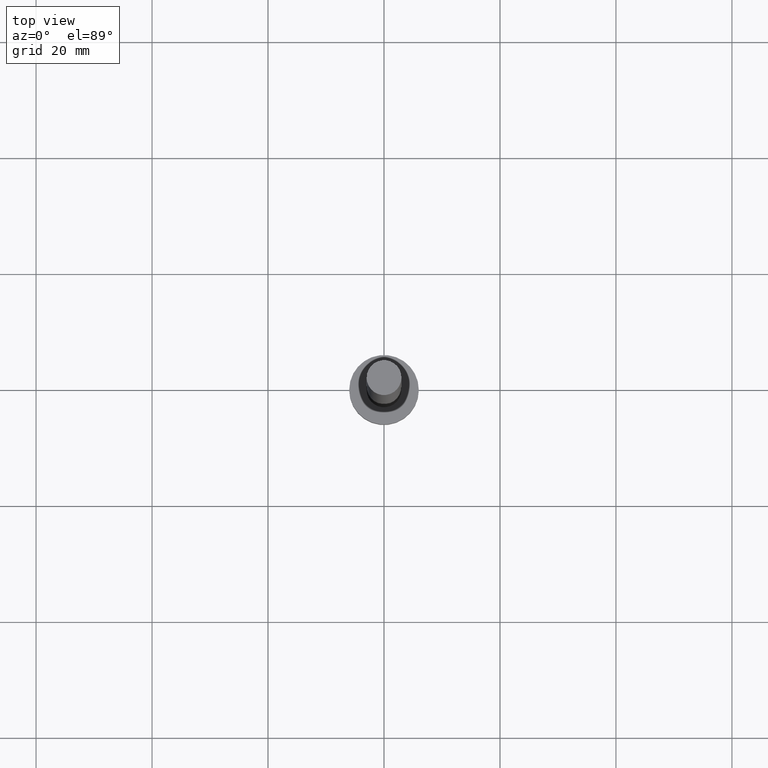
[diagram: clean part render]
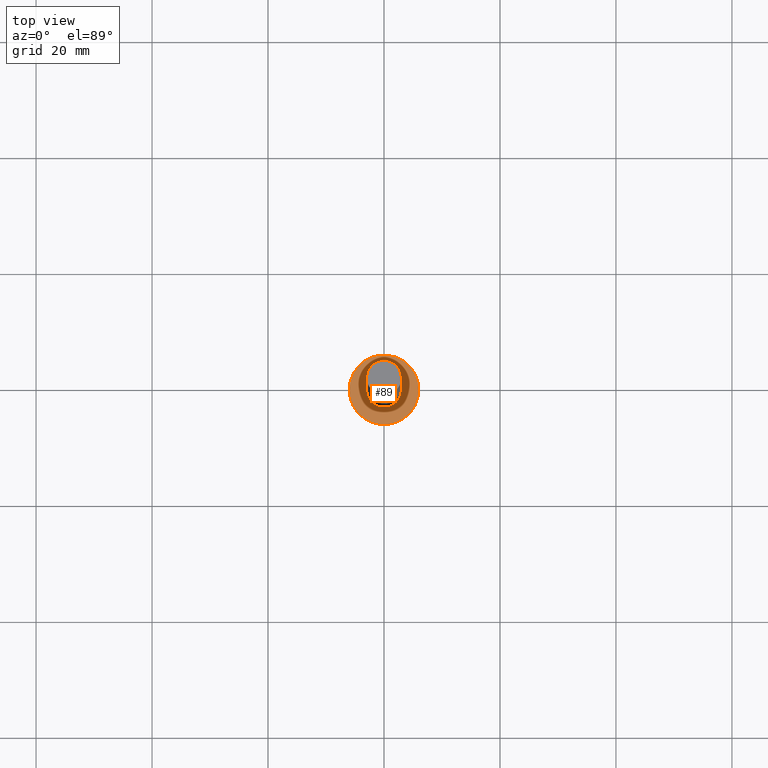
[diagram: same view with one face highlighted and labeled with its STEP entity id]
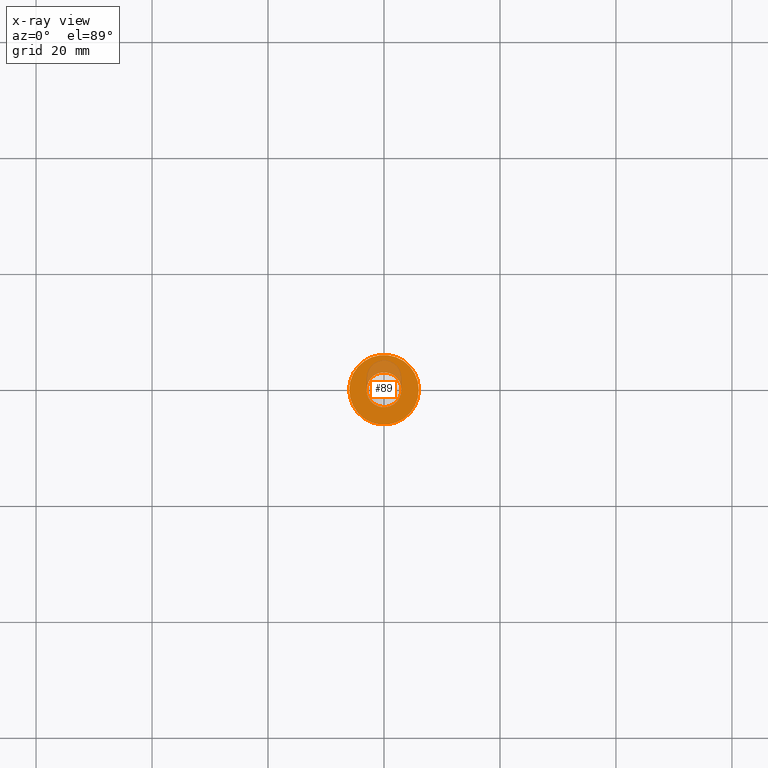
[diagram: x-ray of the same camera — body ghosted, the highlighted face saturated]
A machine part, top view. The second image highlights one B-rep face of the part: STEP entity #89.
The next image is the same camera in x-ray: the body ghosted, the highlighted face saturated — about 15% of this face is hidden behind the body in this view.
In plain terms, the highlighted planar face has unit normal (0, 0, 1).
Its self-contained STEP definition (entity closure, byte-faithful):
#2 = AXIS2_PLACEMENT_3D ( 'NONE', #90, #40, #206 ) ;
#6 = CARTESIAN_POINT ( 'NONE',  ( 0.000000000000000000, 0.000000000000000000, 5.000000000000000000 ) ) ;
#11 = CARTESIAN_POINT ( 'NONE',  ( 3.000000000000000444, 3.673940397442060361E-16, 5.000000000000000000 ) ) ;
#40 = DIRECTION ( 'NONE',  ( 0.000000000000000000, 0.000000000000000000, 1.000000000000000000 ) ) ;
#48 = CIRCLE ( 'NONE', #201, 3.000000000000000444 ) ;
#49 = VERTEX_POINT ( 'NONE', #106 ) ;
#52 = VERTEX_POINT ( 'NONE', #11 ) ;
#55 = ORIENTED_EDGE ( 'NONE', *, *, #128, .F. ) ;
#57 = AXIS2_PLACEMENT_3D ( 'NONE', #60, #205, #124 ) ;
#60 = CARTESIAN_POINT ( 'NONE',  ( 0.000000000000000000, 0.000000000000000000, 5.000000000000000000 ) ) ;
#63 = DIRECTION ( 'NONE',  ( 1.000000000000000000, 0.000000000000000000, 0.000000000000000000 ) ) ;
#89 = ADVANCED_FACE ( 'NONE', ( #203, #157 ), #222, .T. ) ;
#90 = CARTESIAN_POINT ( 'NONE',  ( 0.000000000000000000, 0.000000000000000000, 5.000000000000000000 ) ) ;
#92 = DIRECTION ( 'NONE',  ( 1.000000000000000000, 0.000000000000000000, 0.000000000000000000 ) ) ;
#106 = CARTESIAN_POINT ( 'NONE',  ( -3.000000000000000444, 0.000000000000000000, 5.000000000000000000 ) ) ;
#111 = CARTESIAN_POINT ( 'NONE',  ( 0.000000000000000000, 0.000000000000000000, 5.000000000000000000 ) ) ;
#119 = EDGE_LOOP ( 'NONE', ( #192, #236 ) ) ;
#120 = CIRCLE ( 'NONE', #224, 3.000000000000000444 ) ;
#124 = DIRECTION ( 'NONE',  ( 1.000000000000000000, 0.000000000000000000, -0.000000000000000000 ) ) ;
#128 = EDGE_CURVE ( 'NONE', #52, #49, #120, .T. ) ;
#133 = VERTEX_POINT ( 'NONE', #210 ) ;
#134 = EDGE_CURVE ( 'NONE', #133, #218, #176, .T. ) ;
#146 = EDGE_CURVE ( 'NONE', #49, #52, #48, .T. ) ;
#148 = ORIENTED_EDGE ( 'NONE', *, *, #146, .F. ) ;
#157 = FACE_OUTER_BOUND ( 'NONE', #119, .T. ) ;
#158 = DIRECTION ( 'NONE',  ( 0.000000000000000000, 0.000000000000000000, 1.000000000000000000 ) ) ;
#174 = DIRECTION ( 'NONE',  ( 1.000000000000000000, 0.000000000000000000, 0.000000000000000000 ) ) ;
#175 = DIRECTION ( 'NONE',  ( 0.000000000000000000, 0.000000000000000000, 1.000000000000000000 ) ) ;
#176 = CIRCLE ( 'NONE', #244, 6.000000000000000888 ) ;
#189 = CARTESIAN_POINT ( 'NONE',  ( 0.000000000000000000, 0.000000000000000000, 5.000000000000000000 ) ) ;
#190 = DIRECTION ( 'NONE',  ( 0.000000000000000000, 0.000000000000000000, 1.000000000000000000 ) ) ;
#192 = ORIENTED_EDGE ( 'NONE', *, *, #204, .T. ) ;
#201 = AXIS2_PLACEMENT_3D ( 'NONE', #189, #158, #174 ) ;
#203 = FACE_BOUND ( 'NONE', #254, .T. ) ;
#204 = EDGE_CURVE ( 'NONE', #218, #133, #209, .T. ) ;
#205 = DIRECTION ( 'NONE',  ( 0.000000000000000000, 0.000000000000000000, 1.000000000000000000 ) ) ;
#206 = DIRECTION ( 'NONE',  ( 1.000000000000000000, 0.000000000000000000, 0.000000000000000000 ) ) ;
#209 = CIRCLE ( 'NONE', #2, 6.000000000000000888 ) ;
#210 = CARTESIAN_POINT ( 'NONE',  ( 6.000000000000000888, 7.347880794884120722E-16, 5.000000000000000000 ) ) ;
#218 = VERTEX_POINT ( 'NONE', #226 ) ;
#222 = PLANE ( 'NONE',  #57 ) ;
#224 = AXIS2_PLACEMENT_3D ( 'NONE', #6, #175, #63 ) ;
#226 = CARTESIAN_POINT ( 'NONE',  ( -6.000000000000000888, 0.000000000000000000, 5.000000000000000000 ) ) ;
#236 = ORIENTED_EDGE ( 'NONE', *, *, #134, .T. ) ;
#244 = AXIS2_PLACEMENT_3D ( 'NONE', #111, #190, #92 ) ;
#254 = EDGE_LOOP ( 'NONE', ( #148, #55 ) ) ;